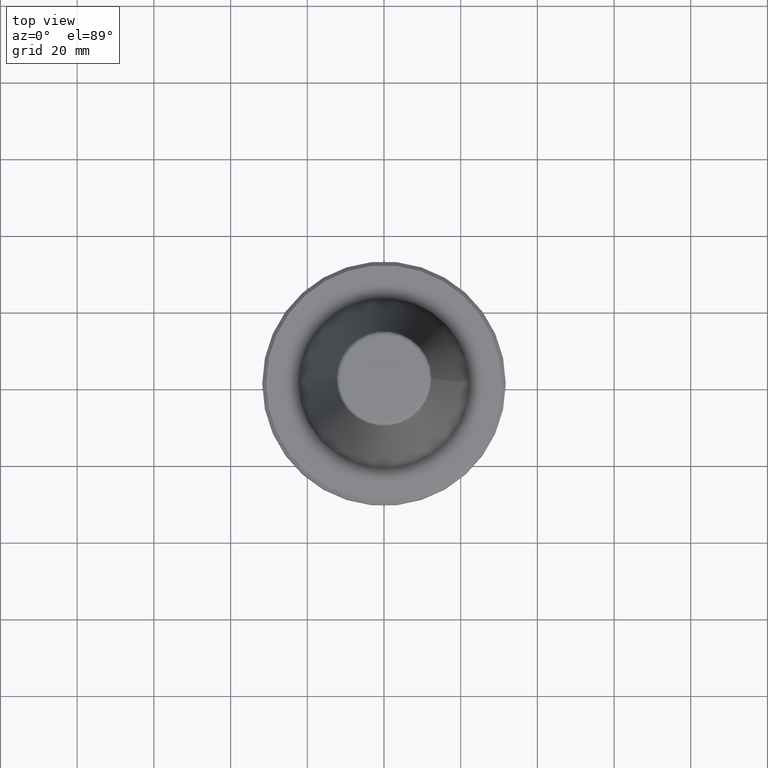
[diagram: clean part render]
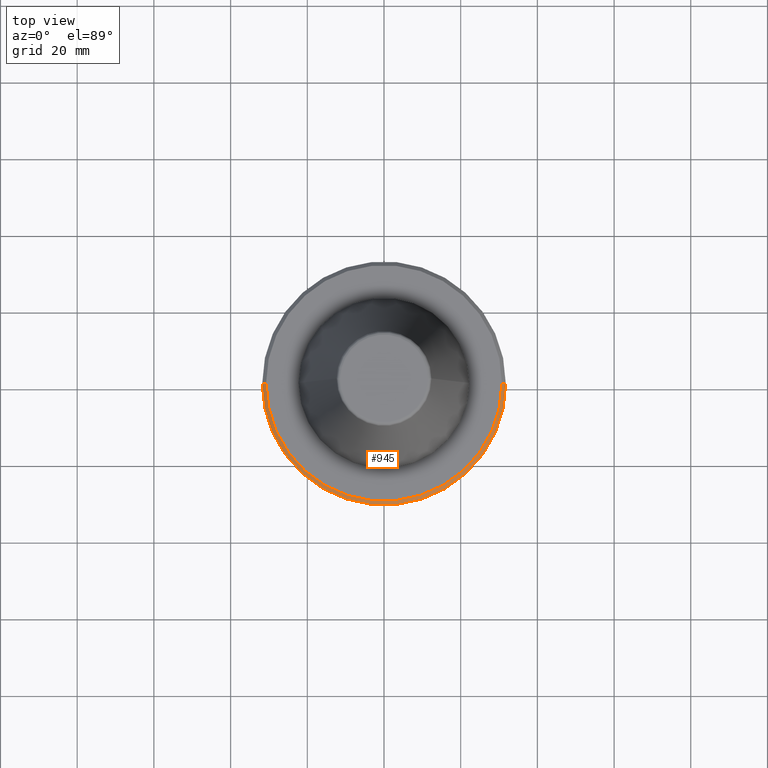
[diagram: same view with one face highlighted and labeled with its STEP entity id]
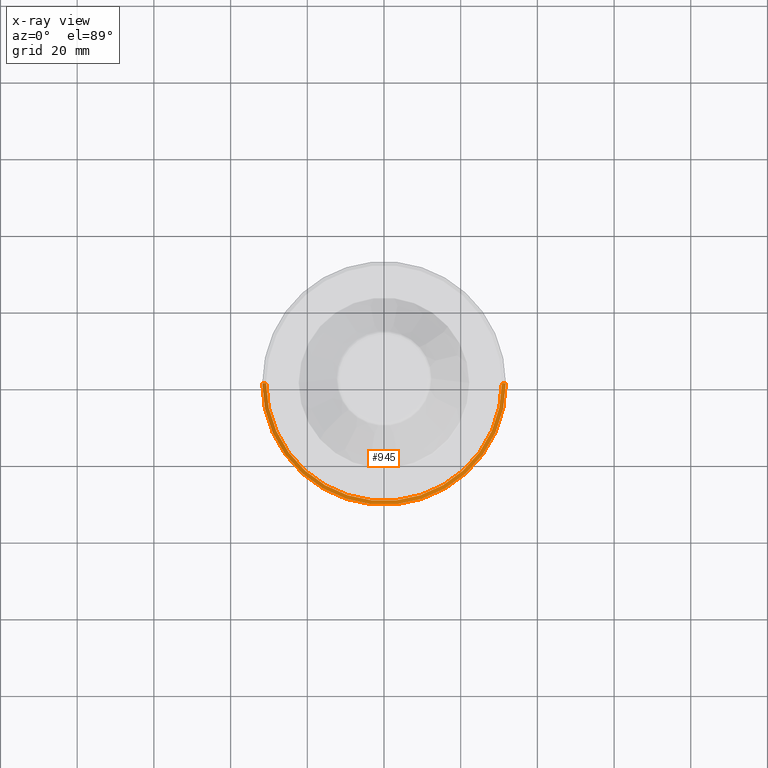
[diagram: x-ray of the same camera — body ghosted, the highlighted face saturated]
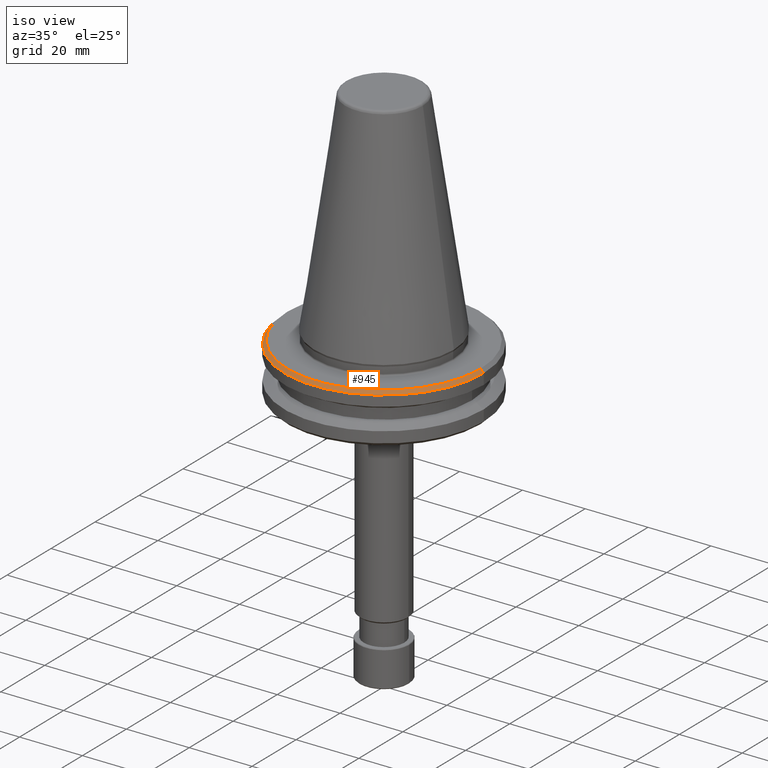
[diagram: same view with one face highlighted and labeled with its STEP entity id]
A machine part, top view. The second image highlights one B-rep face of the part: STEP entity #945.
The next image is the same camera in x-ray: the body ghosted, the highlighted face saturated — about 0% of this face is hidden behind the body in this view.
A second angle (iso view) of the same face is appended — the face is thin or edge-on in the first view.
In plain terms, the highlighted conical surface has half-angle 45 deg.
Its self-contained STEP definition (entity closure, byte-faithful):
#1 = ORIENTED_EDGE ( 'NONE', *, *, #930, .F. ) ;
#18 = DIRECTION ( 'NONE',  ( 1.000000000000000000, 0.0000000000000000000, 0.0000000000000000000 ) ) ;
#23 = EDGE_CURVE ( 'NONE', #291, #1169, #685, .T. ) ;
#41 = CIRCLE ( 'NONE', #435, 30.74999999999983300 ) ;
#121 = DIRECTION ( 'NONE',  ( -0.0000000000000000000, -0.0000000000000000000, 1.000000000000000000 ) ) ;
#221 = DIRECTION ( 'NONE',  ( -1.000000000000000000, 0.0000000000000000000, 0.0000000000000000000 ) ) ;
#249 = AXIS2_PLACEMENT_3D ( 'NONE', #881, #1243, #1202 ) ;
#262 = EDGE_CURVE ( 'NONE', #779, #1200, #430, .T. ) ;
#291 = VERTEX_POINT ( 'NONE', #840 ) ;
#297 = DIRECTION ( 'NONE',  ( -0.7071067811865474600, 0.0000000000000000000, -0.7071067811865475700 ) ) ;
#327 = ORIENTED_EDGE ( 'NONE', *, *, #1081, .T. ) ;
#380 = VECTOR ( 'NONE', #1059, 1000.000000000000000 ) ;
#398 = CARTESIAN_POINT ( 'NONE',  ( 31.74999999999983300, 0.0000000000000000000, 89.19999999999994600 ) ) ;
#430 = LINE ( 'NONE', #1084, #380 ) ;
#435 = AXIS2_PLACEMENT_3D ( 'NONE', #686, #121, #18 ) ;
#476 = CONICAL_SURFACE ( 'NONE', #900, 31.74999999999983300, 0.7853981633974482800 ) ;
#515 = EDGE_LOOP ( 'NONE', ( #1078, #1, #1134, #327 ) ) ;
#523 = CARTESIAN_POINT ( 'NONE',  ( 0.0000000000000000000, 0.0000000000000000000, 89.19999999999994600 ) ) ;
#540 = VECTOR ( 'NONE', #297, 1000.000000000000000 ) ;
#685 = LINE ( 'NONE', #721, #540 ) ;
#686 = CARTESIAN_POINT ( 'NONE',  ( 0.0000000000000000000, 0.0000000000000000000, 90.19999999999994600 ) ) ;
#704 = CIRCLE ( 'NONE', #249, 31.74999999999983300 ) ;
#721 = CARTESIAN_POINT ( 'NONE',  ( -31.74999999999983300, 0.0000000000000000000, 89.19999999999994600 ) ) ;
#779 = VERTEX_POINT ( 'NONE', #931 ) ;
#840 = CARTESIAN_POINT ( 'NONE',  ( -30.74999999999983300, 0.0000000000000000000, 90.19999999999994600 ) ) ;
#856 = CARTESIAN_POINT ( 'NONE',  ( -31.74999999999983300, 3.888253587292826000E-015, 89.19999999999994600 ) ) ;
#871 = DIRECTION ( 'NONE',  ( 0.0000000000000000000, 0.0000000000000000000, -1.000000000000000000 ) ) ;
#881 = CARTESIAN_POINT ( 'NONE',  ( 0.0000000000000000000, 0.0000000000000000000, 89.19999999999994600 ) ) ;
#900 = AXIS2_PLACEMENT_3D ( 'NONE', #523, #871, #221 ) ;
#930 = EDGE_CURVE ( 'NONE', #291, #779, #41, .T. ) ;
#931 = CARTESIAN_POINT ( 'NONE',  ( 30.74999999999983300, 3.827021247335457600E-015, 90.19999999999994600 ) ) ;
#945 = ADVANCED_FACE ( 'NONE', ( #1041 ), #476, .T. ) ;
#1041 = FACE_OUTER_BOUND ( 'NONE', #515, .T. ) ;
#1059 = DIRECTION ( 'NONE',  ( 0.7071067811865474600, 8.659560562354931600E-017, -0.7071067811865475700 ) ) ;
#1078 = ORIENTED_EDGE ( 'NONE', *, *, #262, .F. ) ;
#1081 = EDGE_CURVE ( 'NONE', #1169, #1200, #704, .T. ) ;
#1084 = CARTESIAN_POINT ( 'NONE',  ( 31.74999999999983300, 3.888253587292826000E-015, 89.19999999999994600 ) ) ;
#1134 = ORIENTED_EDGE ( 'NONE', *, *, #23, .T. ) ;
#1169 = VERTEX_POINT ( 'NONE', #856 ) ;
#1200 = VERTEX_POINT ( 'NONE', #398 ) ;
#1202 = DIRECTION ( 'NONE',  ( 1.000000000000000000, 0.0000000000000000000, 0.0000000000000000000 ) ) ;
#1243 = DIRECTION ( 'NONE',  ( -0.0000000000000000000, -0.0000000000000000000, 1.000000000000000000 ) ) ;